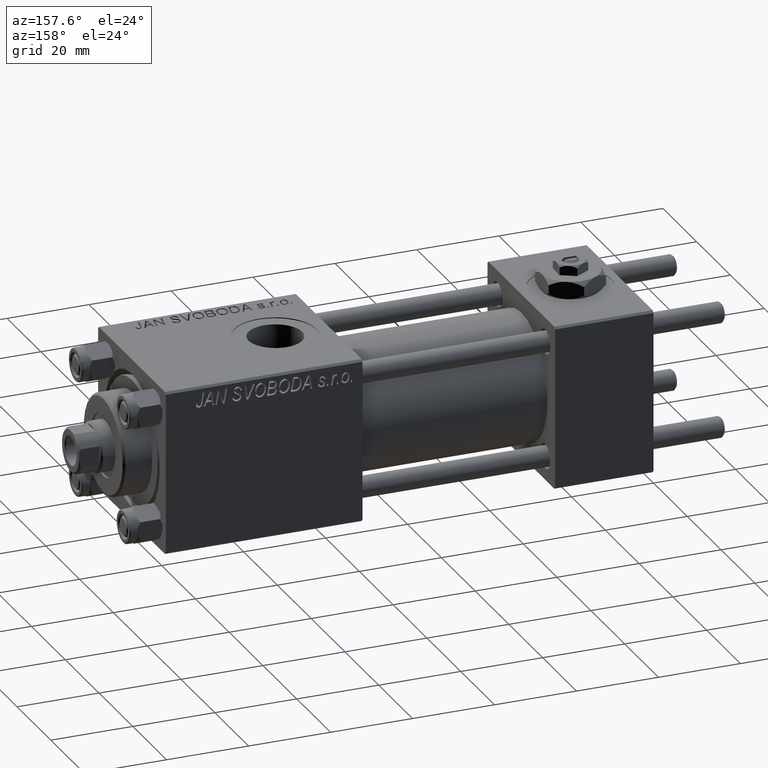
[diagram: clean part render]
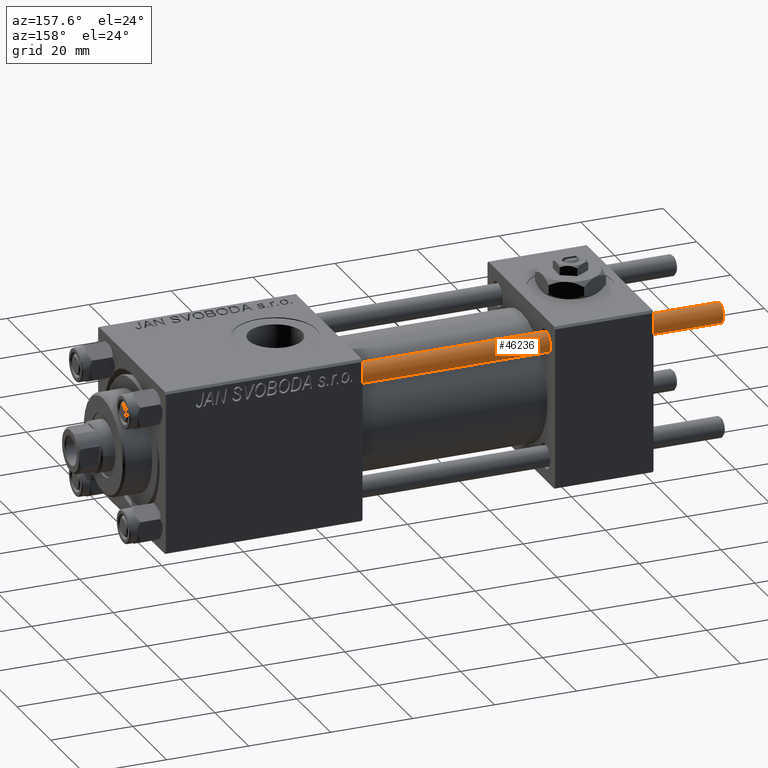
[diagram: same view with one face highlighted and labeled with its STEP entity id]
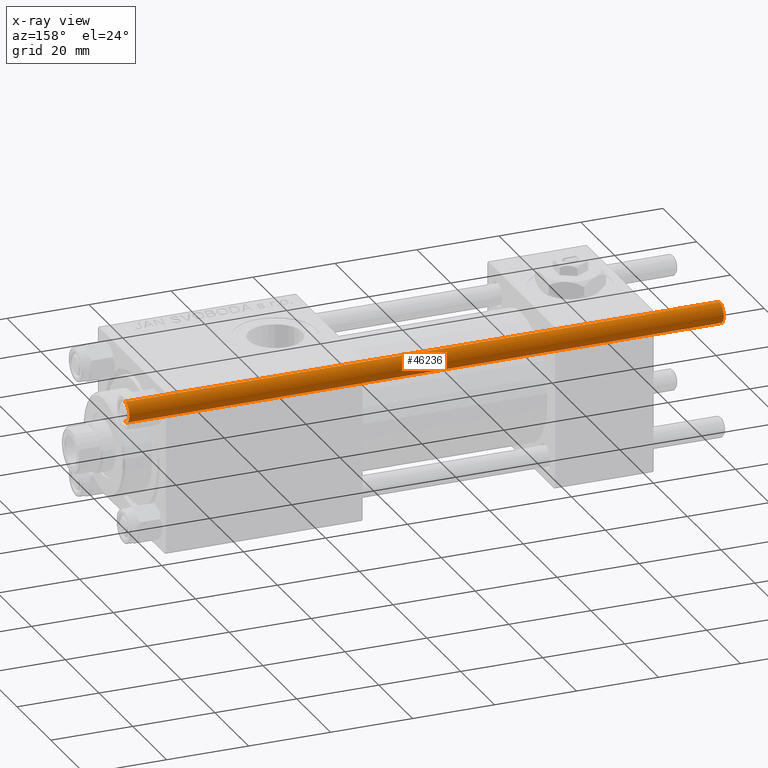
[diagram: x-ray of the same camera — body ghosted, the highlighted face saturated]
A machine part, auxiliary view. The second image highlights one B-rep face of the part: STEP entity #46236.
The next image is the same camera in x-ray: the body ghosted, the highlighted face saturated — about 0% of this face is hidden behind the body in this view.
In plain terms, the highlighted cylindrical surface (edge-blend (fillet) strip) has radius 2.5 mm, axis along (-1, -0, -0).
Its self-contained STEP definition (entity closure, byte-faithful):
#104 = VERTEX_POINT ( 'NONE', #24382 ) ;
#294 = AXIS2_PLACEMENT_3D ( 'NONE', #9187, #44602, #21415 ) ;
#859 = EDGE_CURVE ( 'NONE', #104, #13305, #19300, .T. ) ;
#1492 = CARTESIAN_POINT ( 'NONE',  ( -2.500000000000000000, 0.000000000000000000, 0.5000000000000559552 ) ) ;
#2518 = DIRECTION ( 'NONE',  ( -1.000000000000000000, 0.000000000000000000, 0.000000000000000000 ) ) ;
#5663 = VERTEX_POINT ( 'NONE', #1492 ) ;
#5909 = FACE_OUTER_BOUND ( 'NONE', #20981, .T. ) ;
#6049 = CARTESIAN_POINT ( 'NONE',  ( 0.000000000000000000, 0.000000000000000000, 0.5000000000000559552 ) ) ;
#8105 = EDGE_CURVE ( 'NONE', #38485, #104, #12723, .T. ) ;
#8627 = CARTESIAN_POINT ( 'NONE',  ( 2.500000000000000000, 3.061616997868383141E-16, 0.5000000000000559552 ) ) ;
#9187 = CARTESIAN_POINT ( 'NONE',  ( 0.000000000000000000, 0.000000000000000000, 145.5000000000000284 ) ) ;
#10588 = LINE ( 'NONE', #22557, #16870 ) ;
#10720 = DIRECTION ( 'NONE',  ( 1.000000000000000000, 0.000000000000000000, 0.000000000000000000 ) ) ;
#10853 = EDGE_CURVE ( 'NONE', #38485, #5663, #10588, .T. ) ;
#10891 = CIRCLE ( 'NONE', #15060, 2.500000000000000000 ) ;
#12723 = CIRCLE ( 'NONE', #294, 2.500000000000000000 ) ;
#13305 = VERTEX_POINT ( 'NONE', #8627 ) ;
#15060 = AXIS2_PLACEMENT_3D ( 'NONE', #6049, #18787, #10720 ) ;
#16416 = ORIENTED_EDGE ( 'NONE', *, *, #34389, .T. ) ;
#16870 = VECTOR ( 'NONE', #26454, 1000.000000000000000 ) ;
#18787 = DIRECTION ( 'NONE',  ( -0.000000000000000000, -0.000000000000000000, 1.000000000000000000 ) ) ;
#19300 = LINE ( 'NONE', #23210, #45026 ) ;
#20981 = EDGE_LOOP ( 'NONE', ( #21736, #28535, #16416, #25457 ) ) ;
#21415 = DIRECTION ( 'NONE',  ( 1.000000000000000000, 0.000000000000000000, 0.000000000000000000 ) ) ;
#21736 = ORIENTED_EDGE ( 'NONE', *, *, #8105, .T. ) ;
#21781 = CYLINDRICAL_SURFACE ( 'NONE', #50450, 2.500000000000000000 ) ;
#22291 = CARTESIAN_POINT ( 'NONE',  ( 0.000000000000000000, 0.000000000000000000, 146.0000000000000000 ) ) ;
#22557 = CARTESIAN_POINT ( 'NONE',  ( -2.500000000000000000, 0.000000000000000000, 146.0000000000000000 ) ) ;
#23210 = CARTESIAN_POINT ( 'NONE',  ( 2.500000000000000000, 3.061616997868383141E-16, 146.0000000000000000 ) ) ;
#24382 = CARTESIAN_POINT ( 'NONE',  ( 2.500000000000000000, 3.061616997868383141E-16, 145.5000000000000284 ) ) ;
#25457 = ORIENTED_EDGE ( 'NONE', *, *, #10853, .F. ) ;
#26454 = DIRECTION ( 'NONE',  ( -0.000000000000000000, -0.000000000000000000, -1.000000000000000000 ) ) ;
#28535 = ORIENTED_EDGE ( 'NONE', *, *, #859, .T. ) ;
#34389 = EDGE_CURVE ( 'NONE', #13305, #5663, #10891, .T. ) ;
#38485 = VERTEX_POINT ( 'NONE', #39584 ) ;
#39584 = CARTESIAN_POINT ( 'NONE',  ( -2.500000000000000000, 0.000000000000000000, 145.5000000000000284 ) ) ;
#42993 = DIRECTION ( 'NONE',  ( -0.000000000000000000, -0.000000000000000000, -1.000000000000000000 ) ) ;
#44602 = DIRECTION ( 'NONE',  ( 0.000000000000000000, 0.000000000000000000, -1.000000000000000000 ) ) ;
#45026 = VECTOR ( 'NONE', #42993, 1000.000000000000000 ) ;
#46236 = ADVANCED_FACE ( 'NONE', ( #5909 ), #21781, .T. ) ;
#49919 = DIRECTION ( 'NONE',  ( -0.000000000000000000, -0.000000000000000000, -1.000000000000000000 ) ) ;
#50450 = AXIS2_PLACEMENT_3D ( 'NONE', #22291, #49919, #2518 ) ;